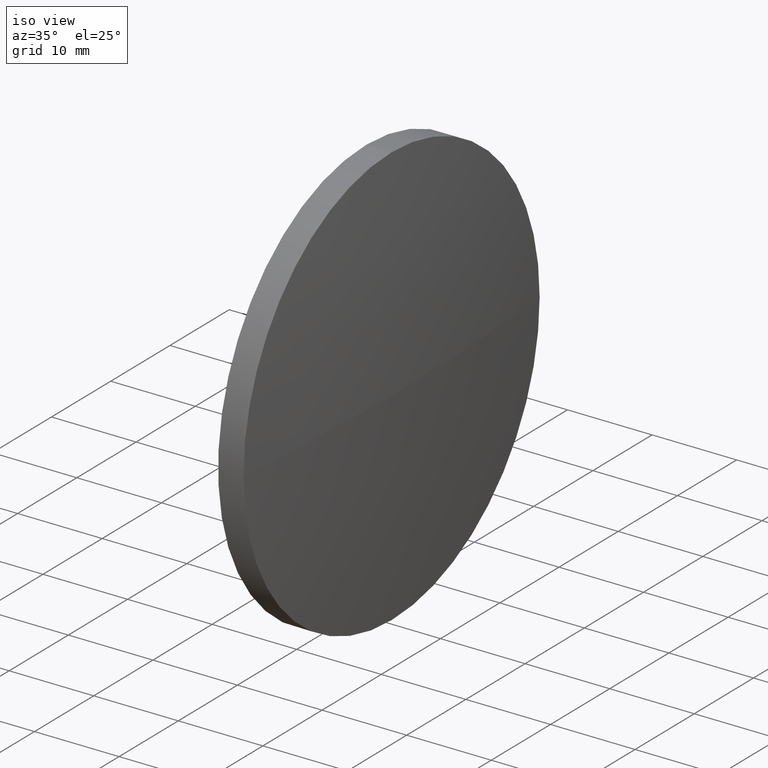
[diagram: clean part render]
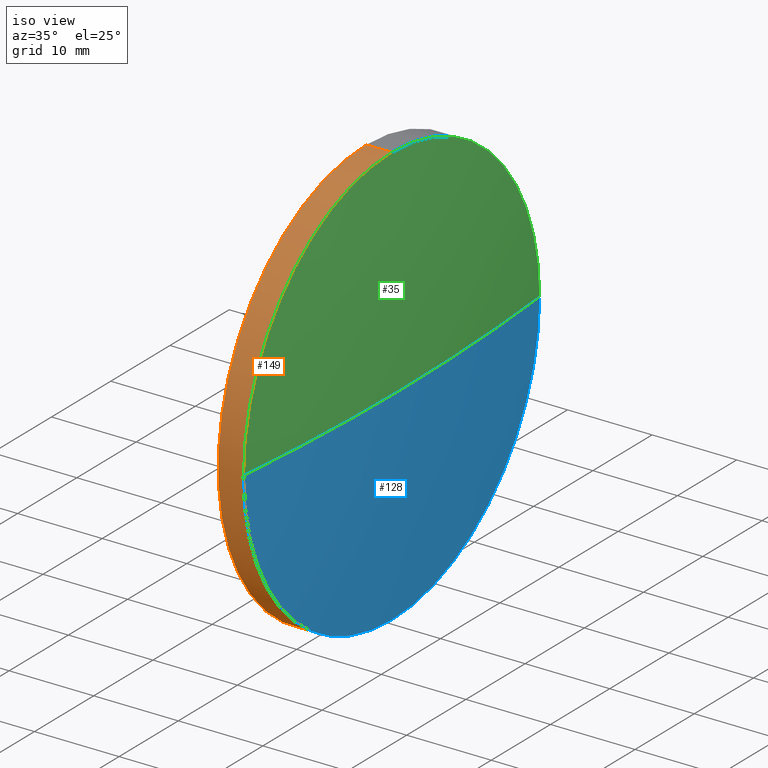
[diagram: same view with three faces highlighted in distinct colors, each labeled with its STEP entity id]
A machine part, iso view with three faces highlighted in distinct colors.
Their STEP definitions:

[orange] entity #149 — the highlighted cylindrical surface (partial cylindrical patch) has radius 25 mm, axis along (-1, -0, -0).
#3 = EDGE_CURVE ( 'NONE', #51, #167, #170, .T. ) ;
#4 = CARTESIAN_POINT ( 'NONE',  ( 462.0046362820362400, 88.87131801322505000, 25.00000000000000700 ) ) ;
#8 = CARTESIAN_POINT ( 'NONE',  ( 465.0046362820362400, 63.87131801322501400, -3.061616997868380300E-015 ) ) ;
#9 = CIRCLE ( 'NONE', #99, 25.00000000000000700 ) ;
#10 = EDGE_CURVE ( 'NONE', #184, #167, #181, .T. ) ;
#14 = DIRECTION ( 'NONE',  ( 0.0000000000000000000, 0.0000000000000000000, 1.000000000000000000 ) ) ;
#15 = DIRECTION ( 'NONE',  ( 0.0000000000000000000, 0.0000000000000000000, 1.000000000000000000 ) ) ;
#22 = CIRCLE ( 'NONE', #36, 25.00000000000000700 ) ;
#31 = CARTESIAN_POINT ( 'NONE',  ( 465.0046362820362400, 88.87131801322505000, 0.0000000000000000000 ) ) ;
#36 = AXIS2_PLACEMENT_3D ( 'NONE', #31, #103, #133 ) ;
#39 = FACE_OUTER_BOUND ( 'NONE', #137, .T. ) ;
#42 = VECTOR ( 'NONE', #124, 1000.000000000000000 ) ;
#51 = VERTEX_POINT ( 'NONE', #151 ) ;
#56 = DIRECTION ( 'NONE',  ( 0.0000000000000000000, 0.0000000000000000000, 1.000000000000000000 ) ) ;
#64 = ORIENTED_EDGE ( 'NONE', *, *, #123, .F. ) ;
#66 = VERTEX_POINT ( 'NONE', #8 ) ;
#69 = CARTESIAN_POINT ( 'NONE',  ( 457.8596245327955800, 88.87131801322505000, 25.00000000000000700 ) ) ;
#71 = EDGE_CURVE ( 'NONE', #66, #184, #22, .T. ) ;
#72 = ORIENTED_EDGE ( 'NONE', *, *, #3, .F. ) ;
#76 = ORIENTED_EDGE ( 'NONE', *, *, #71, .T. ) ;
#83 = CARTESIAN_POINT ( 'NONE',  ( 462.0046362820362400, 88.87131801322505000, 0.0000000000000000000 ) ) ;
#84 = ORIENTED_EDGE ( 'NONE', *, *, #141, .T. ) ;
#85 = DIRECTION ( 'NONE',  ( -1.000000000000000000, -0.0000000000000000000, -0.0000000000000000000 ) ) ;
#94 = CYLINDRICAL_SURFACE ( 'NONE', #152, 25.00000000000000700 ) ;
#97 = LINE ( 'NONE', #182, #144 ) ;
#99 = AXIS2_PLACEMENT_3D ( 'NONE', #171, #174, #56 ) ;
#103 = DIRECTION ( 'NONE',  ( -1.000000000000000000, -0.0000000000000000000, -0.0000000000000000000 ) ) ;
#113 = ORIENTED_EDGE ( 'NONE', *, *, #10, .T. ) ;
#121 = CARTESIAN_POINT ( 'NONE',  ( 465.0046362820362400, 88.87131801322505000, -25.00000000000000700 ) ) ;
#122 = CARTESIAN_POINT ( 'NONE',  ( 465.0046362820362400, 88.87131801322505000, 25.00000000000000700 ) ) ;
#123 = EDGE_CURVE ( 'NONE', #142, #51, #97, .T. ) ;
#124 = DIRECTION ( 'NONE',  ( -1.000000000000000000, -0.0000000000000000000, -0.0000000000000000000 ) ) ;
#133 = DIRECTION ( 'NONE',  ( 0.0000000000000000000, 0.0000000000000000000, 1.000000000000000000 ) ) ;
#137 = EDGE_LOOP ( 'NONE', ( #64, #84, #76, #113, #72 ) ) ;
#141 = EDGE_CURVE ( 'NONE', #142, #66, #9, .T. ) ;
#142 = VERTEX_POINT ( 'NONE', #121 ) ;
#144 = VECTOR ( 'NONE', #157, 1000.000000000000000 ) ;
#145 = CARTESIAN_POINT ( 'NONE',  ( 457.8596245327955800, 88.87131801322505000, 0.0000000000000000000 ) ) ;
#149 = ADVANCED_FACE ( 'NONE', ( #39 ), #94, .T. ) ;
#151 = CARTESIAN_POINT ( 'NONE',  ( 462.0046362820362400, 88.87131801322505000, -25.00000000000000700 ) ) ;
#152 = AXIS2_PLACEMENT_3D ( 'NONE', #145, #186, #15 ) ;
#157 = DIRECTION ( 'NONE',  ( -1.000000000000000000, -0.0000000000000000000, -0.0000000000000000000 ) ) ;
#161 = AXIS2_PLACEMENT_3D ( 'NONE', #83, #85, #14 ) ;
#167 = VERTEX_POINT ( 'NONE', #4 ) ;
#170 = CIRCLE ( 'NONE', #161, 25.00000000000000700 ) ;
#171 = CARTESIAN_POINT ( 'NONE',  ( 465.0046362820362400, 88.87131801322505000, 0.0000000000000000000 ) ) ;
#174 = DIRECTION ( 'NONE',  ( -1.000000000000000000, -0.0000000000000000000, -0.0000000000000000000 ) ) ;
#181 = LINE ( 'NONE', #69, #42 ) ;
#182 = CARTESIAN_POINT ( 'NONE',  ( 457.8596245327955800, 88.87131801322505000, -25.00000000000000700 ) ) ;
#184 = VERTEX_POINT ( 'NONE', #122 ) ;
#186 = DIRECTION ( 'NONE',  ( -1.000000000000000000, -0.0000000000000000000, -0.0000000000000000000 ) ) ;

[blue] entity #128 — the highlighted spherical surface has radius 258.87 mm.
#8 = CARTESIAN_POINT ( 'NONE',  ( 465.0046362820362400, 63.87131801322501400, -3.061616997868380300E-015 ) ) ;
#9 = CIRCLE ( 'NONE', #99, 25.00000000000000700 ) ;
#18 = DIRECTION ( 'NONE',  ( 0.0000000000000000000, 1.000000000000000000, 0.0000000000000000000 ) ) ;
#27 = CIRCLE ( 'NONE', #91, 258.8694628099186200 ) ;
#28 = CARTESIAN_POINT ( 'NONE',  ( 465.0046362820362400, 113.8713180132250400, 0.0000000000000000000 ) ) ;
#34 = DIRECTION ( 'NONE',  ( 0.0000000000000000000, 1.000000000000000000, 1.224646799147353500E-016 ) ) ;
#40 = VERTEX_POINT ( 'NONE', #28 ) ;
#41 = ORIENTED_EDGE ( 'NONE', *, *, #132, .F. ) ;
#43 = AXIS2_PLACEMENT_3D ( 'NONE', #163, #77, #34 ) ;
#52 = AXIS2_PLACEMENT_3D ( 'NONE', #120, #106, #88 ) ;
#55 = CIRCLE ( 'NONE', #43, 258.8694628099186200 ) ;
#56 = DIRECTION ( 'NONE',  ( 0.0000000000000000000, 0.0000000000000000000, 1.000000000000000000 ) ) ;
#60 = CARTESIAN_POINT ( 'NONE',  ( 466.2146362820362200, 88.87131801322500700, 0.0000000000000000000 ) ) ;
#66 = VERTEX_POINT ( 'NONE', #8 ) ;
#67 = AXIS2_PLACEMENT_3D ( 'NONE', #101, #162, #18 ) ;
#77 = DIRECTION ( 'NONE',  ( 0.0000000000000000000, 1.224646799147353200E-016, -1.000000000000000000 ) ) ;
#82 = EDGE_CURVE ( 'NONE', #115, #66, #55, .T. ) ;
#87 = DIRECTION ( 'NONE',  ( -0.0000000000000000000, 0.0000000000000000000, 1.000000000000000000 ) ) ;
#88 = DIRECTION ( 'NONE',  ( 0.0000000000000000000, 0.0000000000000000000, 1.000000000000000000 ) ) ;
#91 = AXIS2_PLACEMENT_3D ( 'NONE', #117, #87, #150 ) ;
#96 = EDGE_CURVE ( 'NONE', #40, #142, #158, .T. ) ;
#99 = AXIS2_PLACEMENT_3D ( 'NONE', #171, #174, #56 ) ;
#100 = ORIENTED_EDGE ( 'NONE', *, *, #82, .T. ) ;
#101 = CARTESIAN_POINT ( 'NONE',  ( 207.3451734721176100, 88.87131801322499300, 0.0000000000000000000 ) ) ;
#105 = EDGE_LOOP ( 'NONE', ( #41, #100, #140, #130 ) ) ;
#106 = DIRECTION ( 'NONE',  ( -1.000000000000000000, -0.0000000000000000000, -0.0000000000000000000 ) ) ;
#115 = VERTEX_POINT ( 'NONE', #60 ) ;
#117 = CARTESIAN_POINT ( 'NONE',  ( 207.3451734721176100, 88.87131801322499300, 0.0000000000000000000 ) ) ;
#120 = CARTESIAN_POINT ( 'NONE',  ( 465.0046362820362400, 88.87131801322505000, 0.0000000000000000000 ) ) ;
#121 = CARTESIAN_POINT ( 'NONE',  ( 465.0046362820362400, 88.87131801322505000, -25.00000000000000700 ) ) ;
#128 = ADVANCED_FACE ( 'NONE', ( #172 ), #155, .T. ) ;
#130 = ORIENTED_EDGE ( 'NONE', *, *, #96, .F. ) ;
#132 = EDGE_CURVE ( 'NONE', #115, #40, #27, .T. ) ;
#140 = ORIENTED_EDGE ( 'NONE', *, *, #141, .F. ) ;
#141 = EDGE_CURVE ( 'NONE', #142, #66, #9, .T. ) ;
#142 = VERTEX_POINT ( 'NONE', #121 ) ;
#150 = DIRECTION ( 'NONE',  ( 1.000000000000000000, 0.0000000000000000000, 0.0000000000000000000 ) ) ;
#155 = SPHERICAL_SURFACE ( 'NONE', #67, 258.8694628099186200 ) ;
#158 = CIRCLE ( 'NONE', #52, 25.00000000000000700 ) ;
#162 = DIRECTION ( 'NONE',  ( -0.0000000000000000000, 0.0000000000000000000, -1.000000000000000000 ) ) ;
#163 = CARTESIAN_POINT ( 'NONE',  ( 207.3451734721176100, 88.87131801322499300, 0.0000000000000000000 ) ) ;
#171 = CARTESIAN_POINT ( 'NONE',  ( 465.0046362820362400, 88.87131801322505000, 0.0000000000000000000 ) ) ;
#172 = FACE_OUTER_BOUND ( 'NONE', #105, .T. ) ;
#174 = DIRECTION ( 'NONE',  ( -1.000000000000000000, -0.0000000000000000000, -0.0000000000000000000 ) ) ;

[green] entity #35 — the highlighted spherical surface has radius 258.87 mm.
#2 = DIRECTION ( 'NONE',  ( -1.000000000000000000, -0.0000000000000000000, -0.0000000000000000000 ) ) ;
#8 = CARTESIAN_POINT ( 'NONE',  ( 465.0046362820362400, 63.87131801322501400, -3.061616997868380300E-015 ) ) ;
#12 = AXIS2_PLACEMENT_3D ( 'NONE', #26, #126, #169 ) ;
#13 = AXIS2_PLACEMENT_3D ( 'NONE', #74, #2, #104 ) ;
#22 = CIRCLE ( 'NONE', #36, 25.00000000000000700 ) ;
#25 = FACE_OUTER_BOUND ( 'NONE', #79, .T. ) ;
#26 = CARTESIAN_POINT ( 'NONE',  ( 207.3451734721176100, 88.87131801322499300, 0.0000000000000000000 ) ) ;
#27 = CIRCLE ( 'NONE', #91, 258.8694628099186200 ) ;
#28 = CARTESIAN_POINT ( 'NONE',  ( 465.0046362820362400, 113.8713180132250400, 0.0000000000000000000 ) ) ;
#31 = CARTESIAN_POINT ( 'NONE',  ( 465.0046362820362400, 88.87131801322505000, 0.0000000000000000000 ) ) ;
#34 = DIRECTION ( 'NONE',  ( 0.0000000000000000000, 1.000000000000000000, 1.224646799147353500E-016 ) ) ;
#35 = ADVANCED_FACE ( 'NONE', ( #25 ), #57, .T. ) ;
#36 = AXIS2_PLACEMENT_3D ( 'NONE', #31, #103, #133 ) ;
#40 = VERTEX_POINT ( 'NONE', #28 ) ;
#43 = AXIS2_PLACEMENT_3D ( 'NONE', #163, #77, #34 ) ;
#48 = CIRCLE ( 'NONE', #13, 25.00000000000000700 ) ;
#55 = CIRCLE ( 'NONE', #43, 258.8694628099186200 ) ;
#57 = SPHERICAL_SURFACE ( 'NONE', #12, 258.8694628099186200 ) ;
#60 = CARTESIAN_POINT ( 'NONE',  ( 466.2146362820362200, 88.87131801322500700, 0.0000000000000000000 ) ) ;
#66 = VERTEX_POINT ( 'NONE', #8 ) ;
#70 = ORIENTED_EDGE ( 'NONE', *, *, #71, .F. ) ;
#71 = EDGE_CURVE ( 'NONE', #66, #184, #22, .T. ) ;
#74 = CARTESIAN_POINT ( 'NONE',  ( 465.0046362820362400, 88.87131801322505000, 0.0000000000000000000 ) ) ;
#77 = DIRECTION ( 'NONE',  ( 0.0000000000000000000, 1.224646799147353200E-016, -1.000000000000000000 ) ) ;
#79 = EDGE_LOOP ( 'NONE', ( #90, #114, #160, #70 ) ) ;
#82 = EDGE_CURVE ( 'NONE', #115, #66, #55, .T. ) ;
#87 = DIRECTION ( 'NONE',  ( -0.0000000000000000000, 0.0000000000000000000, 1.000000000000000000 ) ) ;
#90 = ORIENTED_EDGE ( 'NONE', *, *, #82, .F. ) ;
#91 = AXIS2_PLACEMENT_3D ( 'NONE', #117, #87, #150 ) ;
#103 = DIRECTION ( 'NONE',  ( -1.000000000000000000, -0.0000000000000000000, -0.0000000000000000000 ) ) ;
#104 = DIRECTION ( 'NONE',  ( 0.0000000000000000000, 0.0000000000000000000, 1.000000000000000000 ) ) ;
#114 = ORIENTED_EDGE ( 'NONE', *, *, #132, .T. ) ;
#115 = VERTEX_POINT ( 'NONE', #60 ) ;
#117 = CARTESIAN_POINT ( 'NONE',  ( 207.3451734721176100, 88.87131801322499300, 0.0000000000000000000 ) ) ;
#122 = CARTESIAN_POINT ( 'NONE',  ( 465.0046362820362400, 88.87131801322505000, 25.00000000000000700 ) ) ;
#126 = DIRECTION ( 'NONE',  ( -0.0000000000000000000, 0.0000000000000000000, -1.000000000000000000 ) ) ;
#132 = EDGE_CURVE ( 'NONE', #115, #40, #27, .T. ) ;
#133 = DIRECTION ( 'NONE',  ( 0.0000000000000000000, 0.0000000000000000000, 1.000000000000000000 ) ) ;
#150 = DIRECTION ( 'NONE',  ( 1.000000000000000000, 0.0000000000000000000, 0.0000000000000000000 ) ) ;
#160 = ORIENTED_EDGE ( 'NONE', *, *, #178, .F. ) ;
#163 = CARTESIAN_POINT ( 'NONE',  ( 207.3451734721176100, 88.87131801322499300, 0.0000000000000000000 ) ) ;
#169 = DIRECTION ( 'NONE',  ( 0.0000000000000000000, 1.000000000000000000, 0.0000000000000000000 ) ) ;
#178 = EDGE_CURVE ( 'NONE', #184, #40, #48, .T. ) ;
#184 = VERTEX_POINT ( 'NONE', #122 ) ;